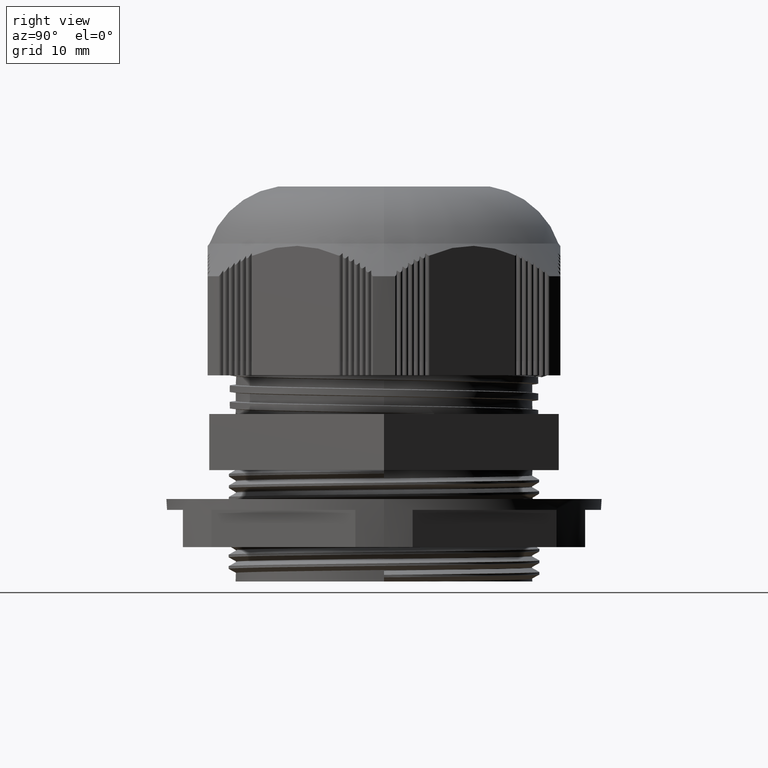
[diagram: clean part render]
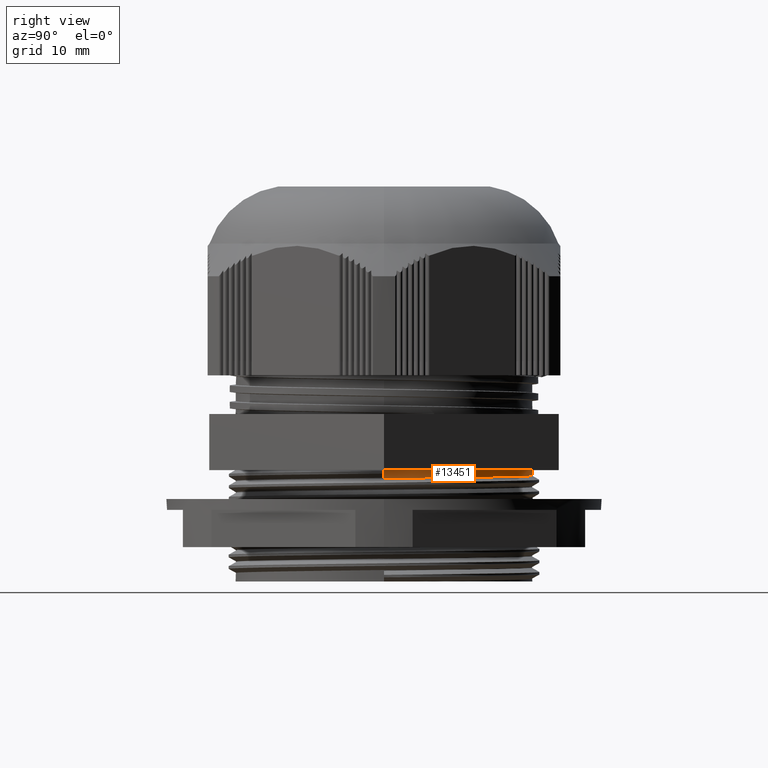
[diagram: same view with one face highlighted and labeled with its STEP entity id]
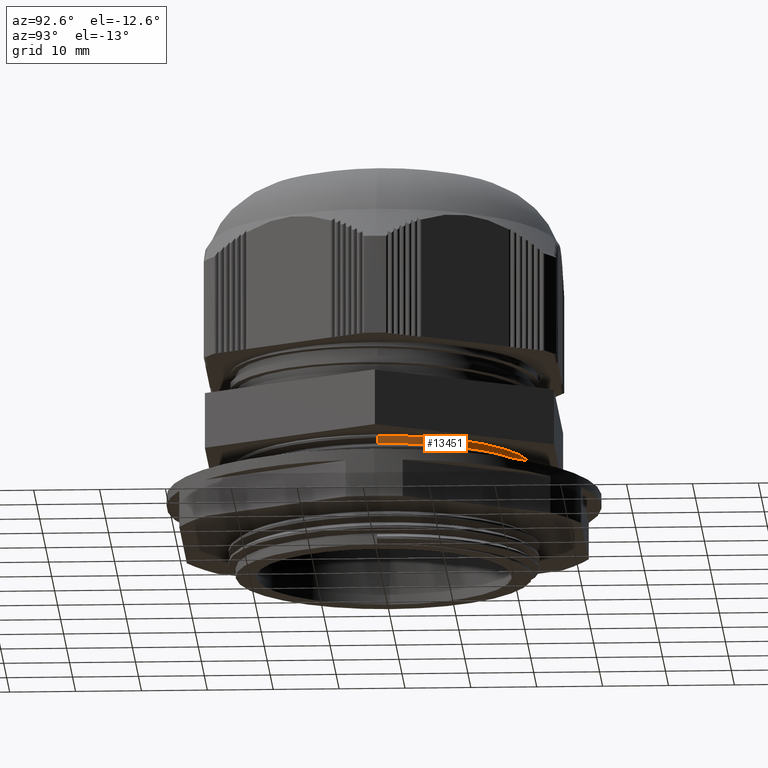
[diagram: same view with one face highlighted and labeled with its STEP entity id]
A machine part, right view. The second image highlights one B-rep face of the part: STEP entity #13451.
A second angle (auxiliary view) of the same face is appended — the face is thin or edge-on in the first view.
In plain terms, the highlighted cylindrical surface (partial cylindrical patch) has radius 22.5 mm, axis along (-0, -0, -1).
Its self-contained STEP definition (entity closure, byte-faithful):
#198 = EDGE_CURVE ( 'NONE', #4012, #4021, #18627, .T. ) ;
#437 = EDGE_CURVE ( 'NONE', #4014, #3973, #19367, .T. ) ;
#463 = EDGE_CURVE ( 'NONE', #4021, #3993, #19447, .T. ) ;
#469 = EDGE_CURVE ( 'NONE', #4014, #4012, #8616, .T. ) ;
#479 = ORIENTED_EDGE ( 'NONE', *, *, #463, .T. ) ;
#863 = CARTESIAN_POINT ( 'NONE',  ( 0.0000000000000000000, 0.0000000000000000000, 55.50000000000000000 ) ) ;
#864 = DIRECTION ( 'NONE',  ( -0.0000000000000000000, -0.0000000000000000000, -1.000000000000000000 ) ) ;
#877 = DIRECTION ( 'NONE',  ( -1.000000000000000000, 0.0000000000000000000, 0.0000000000000000000 ) ) ;
#881 = FACE_OUTER_BOUND ( 'NONE', #22143, .T. ) ;
#905 = CYLINDRICAL_SURFACE ( 'NONE', #9341, 22.49999999999999300 ) ;
#1121 = ORIENTED_EDGE ( 'NONE', *, *, #3492, .T. ) ;
#3492 = EDGE_CURVE ( 'NONE', #3993, #3973, #7327, .T. ) ;
#3973 = VERTEX_POINT ( 'NONE', #16693 ) ;
#3993 = VERTEX_POINT ( 'NONE', #16653 ) ;
#4012 = VERTEX_POINT ( 'NONE', #16699 ) ;
#4014 = VERTEX_POINT ( 'NONE', #16739 ) ;
#4021 = VERTEX_POINT ( 'NONE', #16749 ) ;
#7327 =( BOUNDED_CURVE ( )  B_SPLINE_CURVE ( 2, ( #16037, #16004, #16038, #16040, #16043, #16044, #16045, #16051, #16054, #16055, #16005 ),
 .UNSPECIFIED., .F., .T. ) 
 B_SPLINE_CURVE_WITH_KNOTS ( ( 3, 2, 2, 2, 2, 3 ),
 ( 0.2543420207235067000, 0.2685857650323090800, 0.2828295093411112800, 0.2970732536499136600, 0.3113169979587159200, 0.3255607422675181300 ),
 .UNSPECIFIED. ) 
 CURVE ( )  GEOMETRIC_REPRESENTATION_ITEM ( )  RATIONAL_B_SPLINE_CURVE ( ( 1.000000000000000000, 0.9510565162951535300, 1.000000000000000000, 0.9510565162951535300, 1.000000000000000000, 0.9510565162951535300, 1.000000000000000000, 0.9510565162951535300, 1.000000000000000000, 0.9510565162951535300, 1.000000000000000000 ) ) 
 REPRESENTATION_ITEM ( '' )  );
#7860 = ORIENTED_EDGE ( 'NONE', *, *, #437, .F. ) ;
#8594 = AXIS2_PLACEMENT_3D ( 'NONE', #19512, #19527, #19526 ) ;
#8608 = VECTOR ( 'NONE', #19451, 1000.000000000000000 ) ;
#8616 = CIRCLE ( 'NONE', #8594, 22.49999999999999300 ) ;
#9341 = AXIS2_PLACEMENT_3D ( 'NONE', #863, #864, #877 ) ;
#9608 = VECTOR ( 'NONE', #18630, 1000.000000000000000 ) ;
#9650 = VECTOR ( 'NONE', #19369, 1000.000000000000000 ) ;
#13451 = ADVANCED_FACE ( 'NONE', ( #881 ), #905, .T. ) ;
#16004 = CARTESIAN_POINT ( 'NONE',  ( 22.49999999999998200, 7.310693165240383700, 15.73267059221717200 ) ) ;
#16005 = CARTESIAN_POINT ( 'NONE',  ( -22.49999999999999300, 2.755455298081543600E-015, 16.52017059221718000 ) ) ;
#16037 = CARTESIAN_POINT ( 'NONE',  ( 22.49999999999999300, 0.0000000000000000000, 15.64517059221717200 ) ) ;
#16038 = CARTESIAN_POINT ( 'NONE',  ( 18.20288237343630700, 13.22516817658063600, 15.82017059221717200 ) ) ;
#16040 = CARTESIAN_POINT ( 'NONE',  ( 13.90576474687261800, 19.13964318792088500, 15.90767059221717300 ) ) ;
#16043 = CARTESIAN_POINT ( 'NONE',  ( 6.952882373436313700, 21.39877161664093900, 15.99517059221717500 ) ) ;
#16044 = CARTESIAN_POINT ( 'NONE',  ( 1.448628578255018300E-015, 23.65790004536097900, 16.08267059221717700 ) ) ;
#16045 = CARTESIAN_POINT ( 'NONE',  ( -6.952882373436311000, 21.39877161664094300, 16.17017059221717200 ) ) ;
#16051 = CARTESIAN_POINT ( 'NONE',  ( -13.90576474687261300, 19.13964318792088500, 16.25767059221717400 ) ) ;
#16054 = CARTESIAN_POINT ( 'NONE',  ( -18.20288237343630700, 13.22516817658063800, 16.34517059221717300 ) ) ;
#16055 = CARTESIAN_POINT ( 'NONE',  ( -22.49999999999998200, 7.310693165240389900, 16.43267059221717500 ) ) ;
#16653 = CARTESIAN_POINT ( 'NONE',  ( 22.49999999999999300, 0.0000000000000000000, 15.64517059221717200 ) ) ;
#16693 = CARTESIAN_POINT ( 'NONE',  ( -22.49999999999999300, 2.755455298081543600E-015, 16.52017059221718000 ) ) ;
#16699 = CARTESIAN_POINT ( 'NONE',  ( 22.49999999999999300, -1.232595164407830900E-029, 16.90000000000000600 ) ) ;
#16739 = CARTESIAN_POINT ( 'NONE',  ( -22.49999999999999300, 0.0000000000000000000, 16.90000000000000600 ) ) ;
#16749 = CARTESIAN_POINT ( 'NONE',  ( 22.49999999999999300, 6.888638245203654900E-016, 15.74999999999999600 ) ) ;
#18620 = CARTESIAN_POINT ( 'NONE',  ( 22.49999999999999300, -1.232595164407830900E-029, 16.06754264805429600 ) ) ;
#18627 = LINE ( 'NONE', #18620, #9608 ) ;
#18630 = DIRECTION ( 'NONE',  ( 2.854164459010499500E-060, -4.087325954255561900E-046, -1.000000000000000000 ) ) ;
#19359 = CARTESIAN_POINT ( 'NONE',  ( -22.49999999999999300, 0.0000000000000000000, 55.50000000000000000 ) ) ;
#19367 = LINE ( 'NONE', #19359, #9650 ) ;
#19369 = DIRECTION ( 'NONE',  ( -0.0000000000000000000, -0.0000000000000000000, -1.000000000000000000 ) ) ;
#19447 = LINE ( 'NONE', #19463, #8608 ) ;
#19451 = DIRECTION ( 'NONE',  ( -0.0000000000000000000, -0.0000000000000000000, -1.000000000000000000 ) ) ;
#19463 = CARTESIAN_POINT ( 'NONE',  ( 22.49999999999999300, 2.755455298081543600E-015, 55.50000000000000000 ) ) ;
#19512 = CARTESIAN_POINT ( 'NONE',  ( 0.0000000000000000000, 0.0000000000000000000, 16.90000000000000600 ) ) ;
#19526 = DIRECTION ( 'NONE',  ( -1.000000000000000000, 0.0000000000000000000, 0.0000000000000000000 ) ) ;
#19527 = DIRECTION ( 'NONE',  ( -0.0000000000000000000, -0.0000000000000000000, -1.000000000000000000 ) ) ;
#22143 = EDGE_LOOP ( 'NONE', ( #24895, #479, #1121, #7860, #24896 ) ) ;
#24895 = ORIENTED_EDGE ( 'NONE', *, *, #198, .T. ) ;
#24896 = ORIENTED_EDGE ( 'NONE', *, *, #469, .T. ) ;